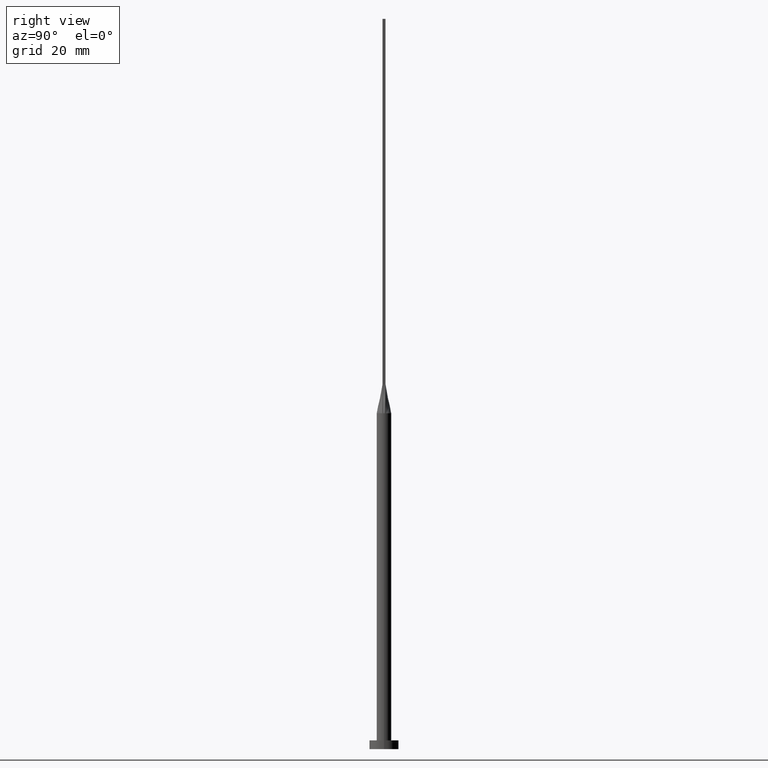
[diagram: clean part render]
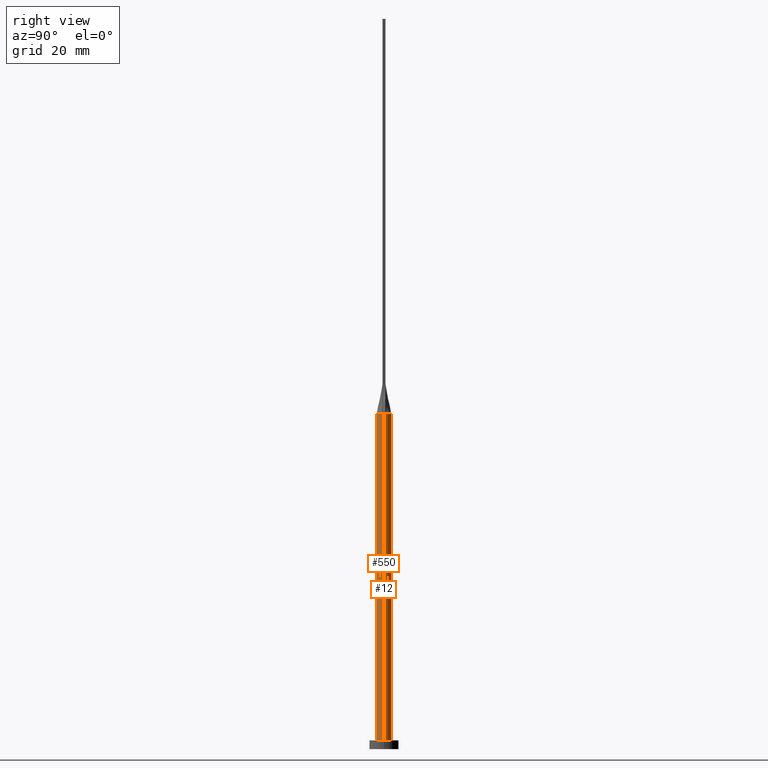
[diagram: same view with one multi-face feature highlighted, each face labeled with its STEP entity id]
A machine part, right view. The highlighted faces form ONE feature: a constant-radius fillet chain: 2 tangent blend faces with common blend radius 2.5 mm. The faces share edges in the B-rep.
Their STEP definitions:
[1] entity #550 (Cylinder):
#22 = DIRECTION ( 'NONE',  ( -0.000000000000000000, -0.000000000000000000, -1.000000000000000000 ) ) ;
#32 = DIRECTION ( 'NONE',  ( 0.000000000000000000, 0.000000000000000000, 1.000000000000000000 ) ) ;
#69 = DIRECTION ( 'NONE',  ( -0.000000000000000000, -0.000000000000000000, -1.000000000000000000 ) ) ;
#70 = VERTEX_POINT ( 'NONE', #338 ) ;
#76 = CYLINDRICAL_SURFACE ( 'NONE', #165, 2.500000000000000000 ) ;
#83 = ORIENTED_EDGE ( 'NONE', *, *, #211, .F. ) ;
#87 = AXIS2_PLACEMENT_3D ( 'NONE', #567, #523, #190 ) ;
#88 = VERTEX_POINT ( 'NONE', #529 ) ;
#94 = CIRCLE ( 'NONE', #339, 2.500000000000000000 ) ;
#109 = LINE ( 'NONE', #308, #443 ) ;
#139 = EDGE_CURVE ( 'NONE', #70, #558, #109, .T. ) ;
#163 = CARTESIAN_POINT ( 'NONE',  ( 2.440706242928429415, -0.5423794613208688942, 115.0000000000000000 ) ) ;
#165 = AXIS2_PLACEMENT_3D ( 'NONE', #436, #236, #421 ) ;
#190 = DIRECTION ( 'NONE',  ( 1.000000000000000000, 0.000000000000000000, 0.000000000000000000 ) ) ;
#211 = EDGE_CURVE ( 'NONE', #227, #275, #456, .T. ) ;
#212 = DIRECTION ( 'NONE',  ( 1.000000000000000000, 0.000000000000000000, 0.000000000000000000 ) ) ;
#216 = DIRECTION ( 'NONE',  ( 0.000000000000000000, 0.000000000000000000, 1.000000000000000000 ) ) ;
#219 = EDGE_CURVE ( 'NONE', #88, #229, #314, .T. ) ;
#225 = ORIENTED_EDGE ( 'NONE', *, *, #570, .F. ) ;
#227 = VERTEX_POINT ( 'NONE', #342 ) ;
#229 = VERTEX_POINT ( 'NONE', #372 ) ;
#231 = DIRECTION ( 'NONE',  ( 1.000000000000000000, -4.440892098500626162E-15, 0.000000000000000000 ) ) ;
#236 = DIRECTION ( 'NONE',  ( -0.000000000000000000, -0.000000000000000000, -1.000000000000000000 ) ) ;
#247 = ORIENTED_EDGE ( 'NONE', *, *, #264, .T. ) ;
#264 = EDGE_CURVE ( 'NONE', #229, #558, #276, .T. ) ;
#272 = AXIS2_PLACEMENT_3D ( 'NONE', #535, #32, #231 ) ;
#273 = ORIENTED_EDGE ( 'NONE', *, *, #219, .T. ) ;
#275 = VERTEX_POINT ( 'NONE', #163 ) ;
#276 = CIRCLE ( 'NONE', #87, 2.500000000000000000 ) ;
#278 = CARTESIAN_POINT ( 'NONE',  ( -2.500000000000000000, 0.000000000000000000, 115.0000000000000000 ) ) ;
#306 = ORIENTED_EDGE ( 'NONE', *, *, #139, .F. ) ;
#308 = CARTESIAN_POINT ( 'NONE',  ( 2.500000000000000000, 3.061616997868383141E-16, 115.0000000000000000 ) ) ;
#314 = LINE ( 'NONE', #278, #359 ) ;
#320 = ORIENTED_EDGE ( 'NONE', *, *, #538, .F. ) ;
#338 = CARTESIAN_POINT ( 'NONE',  ( 2.499645589935823420, 5.999196936655281332E-16, 115.0000000000000000 ) ) ;
#339 = AXIS2_PLACEMENT_3D ( 'NONE', #487, #348, #212 ) ;
#342 = CARTESIAN_POINT ( 'NONE',  ( -2.440688158044365785, -0.5423755258804862089, 115.0000000000000000 ) ) ;
#348 = DIRECTION ( 'NONE',  ( 0.000000000000000000, 0.000000000000000000, 1.000000000000000000 ) ) ;
#359 = VECTOR ( 'NONE', #22, 1000.000000000000000 ) ;
#372 = CARTESIAN_POINT ( 'NONE',  ( -2.500000000000000000, 0.000000000000000000, 3.000000000000000000 ) ) ;
#380 = FACE_OUTER_BOUND ( 'NONE', #541, .T. ) ;
#401 = DIRECTION ( 'NONE',  ( 1.000000000000000000, 0.000000000000000000, 0.000000000000000000 ) ) ;
#416 = AXIS2_PLACEMENT_3D ( 'NONE', #496, #216, #401 ) ;
#421 = DIRECTION ( 'NONE',  ( -1.000000000000000000, 0.000000000000000000, 0.000000000000000000 ) ) ;
#436 = CARTESIAN_POINT ( 'NONE',  ( 0.000000000000000000, 0.000000000000000000, 115.0000000000000000 ) ) ;
#443 = VECTOR ( 'NONE', #69, 1000.000000000000000 ) ;
#446 = CARTESIAN_POINT ( 'NONE',  ( 2.500000000000000000, 3.061616997868383141E-16, 3.000000000000000000 ) ) ;
#456 = CIRCLE ( 'NONE', #416, 2.500000000000000000 ) ;
#463 = CIRCLE ( 'NONE', #272, 2.500000000000000000 ) ;
#487 = CARTESIAN_POINT ( 'NONE',  ( 0.000000000000000000, 0.000000000000000000, 115.0000000000000000 ) ) ;
#496 = CARTESIAN_POINT ( 'NONE',  ( 0.000000000000000000, 0.000000000000000000, 115.0000000000000000 ) ) ;
#523 = DIRECTION ( 'NONE',  ( 0.000000000000000000, 0.000000000000000000, 1.000000000000000000 ) ) ;
#529 = CARTESIAN_POINT ( 'NONE',  ( -2.499645589935823420, -1.700711608024726496E-15, 115.0000000000000000 ) ) ;
#535 = CARTESIAN_POINT ( 'NONE',  ( 0.000000000000000000, 0.000000000000000000, 115.0000000000000000 ) ) ;
#538 = EDGE_CURVE ( 'NONE', #275, #70, #463, .T. ) ;
#541 = EDGE_LOOP ( 'NONE', ( #306, #320, #83, #225, #273, #247 ) ) ;
#550 = ADVANCED_FACE ( 'NONE', ( #380 ), #76, .T. ) ;
#558 = VERTEX_POINT ( 'NONE', #446 ) ;
#567 = CARTESIAN_POINT ( 'NONE',  ( 0.000000000000000000, 0.000000000000000000, 3.000000000000000000 ) ) ;
#570 = EDGE_CURVE ( 'NONE', #88, #227, #94, .T. ) ;
[2] entity #12 (Cylinder):
#12 = ADVANCED_FACE ( 'NONE', ( #258 ), #478, .T. ) ;
#22 = DIRECTION ( 'NONE',  ( -0.000000000000000000, -0.000000000000000000, -1.000000000000000000 ) ) ;
#36 = EDGE_CURVE ( 'NONE', #70, #106, #169, .T. ) ;
#39 = CARTESIAN_POINT ( 'NONE',  ( -2.440694335308545071, 0.5423767520433731004, 115.0000000000000000 ) ) ;
#44 = ORIENTED_EDGE ( 'NONE', *, *, #36, .F. ) ;
#46 = CARTESIAN_POINT ( 'NONE',  ( -2.396350003401058082, 0.7408555563113466969, 114.9999999999999858 ) ) ;
#60 = EDGE_CURVE ( 'NONE', #558, #229, #144, .T. ) ;
#64 = DIRECTION ( 'NONE',  ( 1.000000000000000000, 0.000000000000000000, 0.000000000000000000 ) ) ;
#67 = EDGE_LOOP ( 'NONE', ( #44, #576, #182, #285, #223, #548 ) ) ;
#69 = DIRECTION ( 'NONE',  ( -0.000000000000000000, -0.000000000000000000, -1.000000000000000000 ) ) ;
#70 = VERTEX_POINT ( 'NONE', #338 ) ;
#81 = CARTESIAN_POINT ( 'NONE',  ( -0.3342381693191151526, 2.499999999999999556, 115.0000000000000284 ) ) ;
#88 = VERTEX_POINT ( 'NONE', #529 ) ;
#95 = CARTESIAN_POINT ( 'NONE',  ( -2.323660390030918510, 0.9543733860570832173, 114.9999999999999858 ) ) ;
#100 = CARTESIAN_POINT ( 'NONE',  ( 0.000000000000000000, 0.000000000000000000, 115.0000000000000000 ) ) ;
#106 = VERTEX_POINT ( 'NONE', #210 ) ;
#109 = LINE ( 'NONE', #308, #443 ) ;
#117 = CIRCLE ( 'NONE', #490, 2.500000000000000000 ) ;
#119 = DIRECTION ( 'NONE',  ( 1.000000000000000000, 0.000000000000000000, 0.000000000000000000 ) ) ;
#128 = CARTESIAN_POINT ( 'NONE',  ( 2.396350003401058526, 0.7408555563113465858, 114.9999999999999858 ) ) ;
#139 = EDGE_CURVE ( 'NONE', #70, #558, #109, .T. ) ;
#140 = EDGE_CURVE ( 'NONE', #544, #88, #117, .T. ) ;
#144 = CIRCLE ( 'NONE', #565, 2.500000000000000000 ) ;
#155 = CARTESIAN_POINT ( 'NONE',  ( 1.519400572660313031, 2.006070808634367708, 115.0000000000000284 ) ) ;
#169 = CIRCLE ( 'NONE', #516, 2.500000000000000000 ) ;
#182 = ORIENTED_EDGE ( 'NONE', *, *, #60, .T. ) ;
#206 = DIRECTION ( 'NONE',  ( 0.000000000000000000, 0.000000000000000000, 1.000000000000000000 ) ) ;
#210 = CARTESIAN_POINT ( 'NONE',  ( 2.440676307083422980, 0.5423728264510006003, 115.0000000000000000 ) ) ;
#219 = EDGE_CURVE ( 'NONE', #88, #229, #314, .T. ) ;
#223 = ORIENTED_EDGE ( 'NONE', *, *, #140, .F. ) ;
#228 = AXIS2_PLACEMENT_3D ( 'NONE', #334, #533, #296 ) ;
#229 = VERTEX_POINT ( 'NONE', #372 ) ;
#251 = CARTESIAN_POINT ( 'NONE',  ( -0.6674771052374470770, 2.430579781493059421, 114.9999999999999858 ) ) ;
#258 = FACE_OUTER_BOUND ( 'NONE', #67, .T. ) ;
#274 = DIRECTION ( 'NONE',  ( 0.000000000000000000, 0.000000000000000000, 1.000000000000000000 ) ) ;
#278 = CARTESIAN_POINT ( 'NONE',  ( -2.500000000000000000, 0.000000000000000000, 115.0000000000000000 ) ) ;
#285 = ORIENTED_EDGE ( 'NONE', *, *, #219, .F. ) ;
#291 = CARTESIAN_POINT ( 'NONE',  ( 2.323660390030918954, 0.9543733860570833283, 115.0000000000000426 ) ) ;
#295 = CARTESIAN_POINT ( 'NONE',  ( -1.519400572660313253, 2.006070808634367264, 115.0000000000000426 ) ) ;
#296 = DIRECTION ( 'NONE',  ( -1.000000000000000000, 0.000000000000000000, 0.000000000000000000 ) ) ;
#308 = CARTESIAN_POINT ( 'NONE',  ( 2.500000000000000000, 3.061616997868383141E-16, 115.0000000000000000 ) ) ;
#314 = LINE ( 'NONE', #278, #359 ) ;
#328 = CARTESIAN_POINT ( 'NONE',  ( -2.440694335308545071, 0.5423767520433731004, 115.0000000000000000 ) ) ;
#333 = CARTESIAN_POINT ( 'NONE',  ( 0.6674771052374470770, 2.430579781493058977, 114.9999999999999858 ) ) ;
#334 = CARTESIAN_POINT ( 'NONE',  ( 0.000000000000000000, 0.000000000000000000, 115.0000000000000000 ) ) ;
#337 = CARTESIAN_POINT ( 'NONE',  ( 1.935644909179608186, 1.608159499248285051, 114.9999999999999716 ) ) ;
#338 = CARTESIAN_POINT ( 'NONE',  ( 2.499645589935823420, 5.999196936655281332E-16, 115.0000000000000000 ) ) ;
#347 = CARTESIAN_POINT ( 'NONE',  ( 2.440676307083422980, 0.5423728264510006003, 115.0000000000000000 ) ) ;
#349 = CARTESIAN_POINT ( 'NONE',  ( -1.935644909179609297, 1.608159499248285718, 115.0000000000000284 ) ) ;
#359 = VECTOR ( 'NONE', #22, 1000.000000000000000 ) ;
#372 = CARTESIAN_POINT ( 'NONE',  ( -2.500000000000000000, 0.000000000000000000, 3.000000000000000000 ) ) ;
#386 = CARTESIAN_POINT ( 'NONE',  ( -1.260416918790968843, 2.182794756967428196, 115.0000000000000000 ) ) ;
#429 = DIRECTION ( 'NONE',  ( 0.000000000000000000, 0.000000000000000000, 1.000000000000000000 ) ) ;
#434 = CARTESIAN_POINT ( 'NONE',  ( 0.000000000000000000, 0.000000000000000000, 3.000000000000000000 ) ) ;
#443 = VECTOR ( 'NONE', #69, 1000.000000000000000 ) ;
#446 = CARTESIAN_POINT ( 'NONE',  ( 2.500000000000000000, 3.061616997868383141E-16, 3.000000000000000000 ) ) ;
#474 = DIRECTION ( 'NONE',  ( 1.000000000000000000, 0.000000000000000000, 0.000000000000000000 ) ) ;
#478 = CYLINDRICAL_SURFACE ( 'NONE', #228, 2.500000000000000000 ) ;
#480 = CARTESIAN_POINT ( 'NONE',  ( 2.093723281432890104, 1.388001797188529007, 114.9999999999999574 ) ) ;
#490 = AXIS2_PLACEMENT_3D ( 'NONE', #100, #274, #64 ) ;
#497 = CARTESIAN_POINT ( 'NONE',  ( -2.093723281432891437, 1.388001797188529451, 115.0000000000000284 ) ) ;
#514 = EDGE_CURVE ( 'NONE', #106, #544, #580, .T. ) ;
#516 = AXIS2_PLACEMENT_3D ( 'NONE', #525, #206, #474 ) ;
#524 = CARTESIAN_POINT ( 'NONE',  ( 0.3342381693191150416, 2.499999999999999556, 114.9999999999999858 ) ) ;
#525 = CARTESIAN_POINT ( 'NONE',  ( 0.000000000000000000, 0.000000000000000000, 115.0000000000000000 ) ) ;
#529 = CARTESIAN_POINT ( 'NONE',  ( -2.499645589935823420, -1.700711608024726496E-15, 115.0000000000000000 ) ) ;
#533 = DIRECTION ( 'NONE',  ( -0.000000000000000000, -0.000000000000000000, -1.000000000000000000 ) ) ;
#544 = VERTEX_POINT ( 'NONE', #328 ) ;
#548 = ORIENTED_EDGE ( 'NONE', *, *, #514, .F. ) ;
#558 = VERTEX_POINT ( 'NONE', #446 ) ;
#560 = CARTESIAN_POINT ( 'NONE',  ( 1.260416918790968843, 2.182794756967427752, 115.0000000000000000 ) ) ;
#565 = AXIS2_PLACEMENT_3D ( 'NONE', #434, #429, #119 ) ;
#576 = ORIENTED_EDGE ( 'NONE', *, *, #139, .T. ) ;
#580 = B_SPLINE_CURVE_WITH_KNOTS ( 'NONE', 3,
 ( #347, #128, #291, #480, #337, #155, #560, #333, #524, #81, #251, #386, #295, #349, #497, #95, #46, #39 ),
 .UNSPECIFIED., .F., .F.,
 ( 4, 2, 2, 2, 2, 2, 2, 2, 4 ),
 ( 0.000000000000000000, 0.1249999999999999722, 0.2500000000000000000, 0.3750000000000000000, 0.5000000000000001110, 0.6250000000000001110, 0.7500000000000000000, 0.8750000000000000000, 1.000000000000000000 ),
 .UNSPECIFIED. ) ;